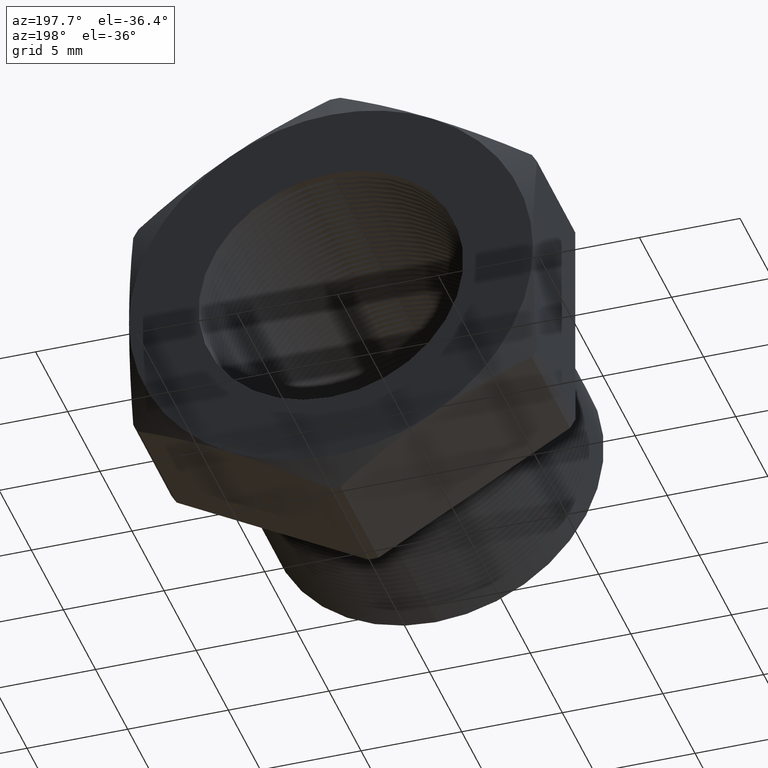
[diagram: clean part render]
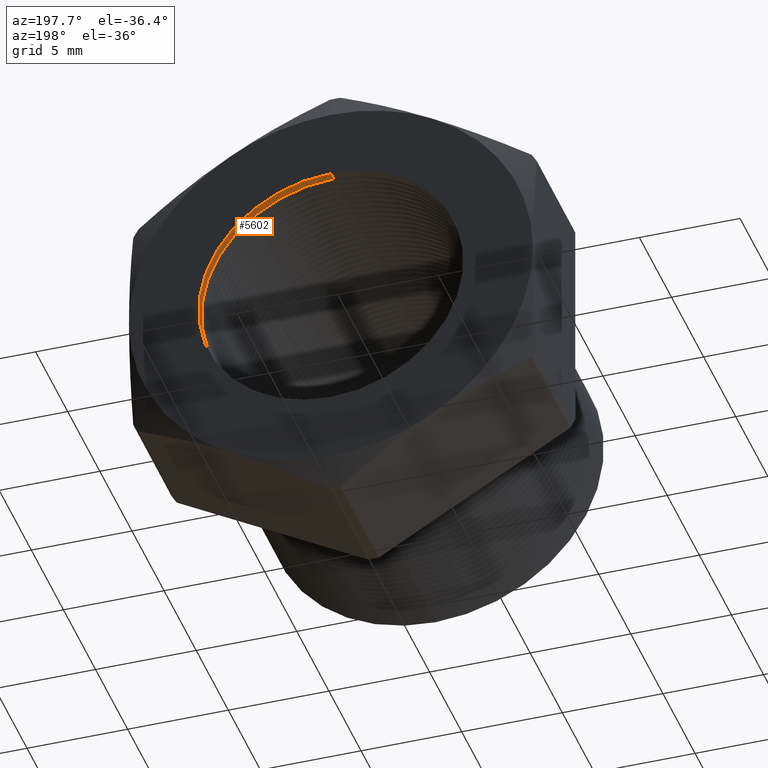
[diagram: same view with one face highlighted and labeled with its STEP entity id]
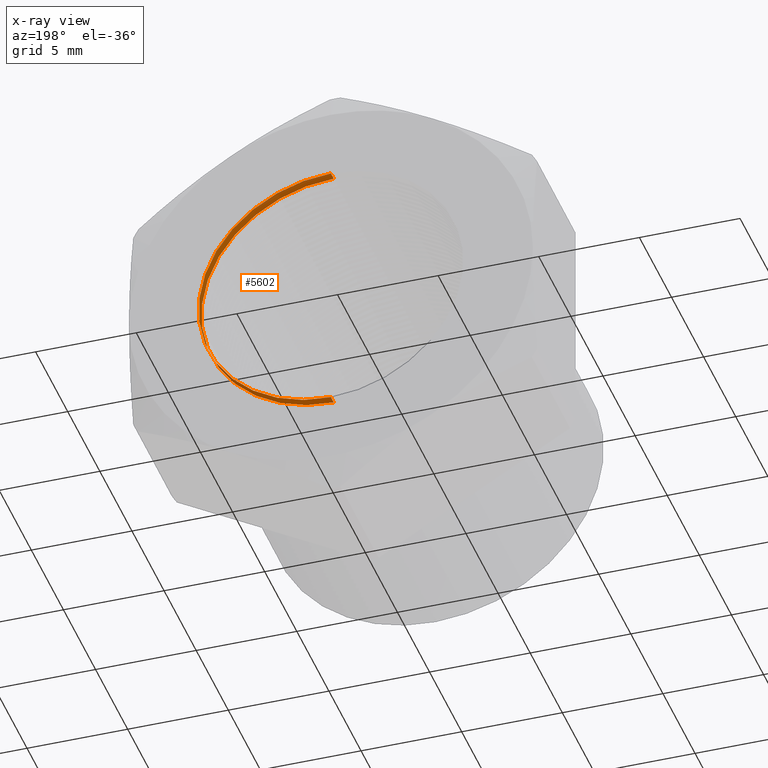
[diagram: x-ray of the same camera — body ghosted, the highlighted face saturated]
A machine part, auxiliary view. The second image highlights one B-rep face of the part: STEP entity #5602.
The next image is the same camera in x-ray: the body ghosted, the highlighted face saturated — about 0% of this face is hidden behind the body in this view.
In plain terms, the highlighted cylindrical surface (partial cylindrical patch) has radius 6.5783 mm, axis along (-0, -1, -0).
Its self-contained STEP definition (entity closure, byte-faithful):
#393 = VERTEX_POINT ( 'NONE', #7315 ) ;
#448 = VERTEX_POINT ( 'NONE', #7460 ) ;
#452 = VERTEX_POINT ( 'NONE', #7453 ) ;
#467 = EDGE_CURVE ( 'NONE', #448, #393, #7484, .T. ) ;
#468 = VERTEX_POINT ( 'NONE', #7480 ) ;
#474 = EDGE_CURVE ( 'NONE', #468, #452, #7475, .T. ) ;
#1187 = DIRECTION ( 'NONE',  ( 0.0000000000000000000, 0.0000000000000000000, -1.000000000000000000 ) ) ;
#1188 = DIRECTION ( 'NONE',  ( -0.0000000000000000000, -1.000000000000000000, -0.0000000000000000000 ) ) ;
#1189 = CARTESIAN_POINT ( 'NONE',  ( 0.0000000000000000000, 0.0000000000000000000, 0.0000000000000000000 ) ) ;
#1191 = AXIS2_PLACEMENT_3D ( 'NONE', #1189, #1188, #1187 ) ;
#1192 = CYLINDRICAL_SURFACE ( 'NONE', #1191, 0.2589880461203001900 ) ;
#1193 = FACE_OUTER_BOUND ( 'NONE', #5593, .T. ) ;
#1232 = DIRECTION ( 'NONE',  ( 0.0000000000000000000, 0.0000000000000000000, -1.000000000000000000 ) ) ;
#1233 = DIRECTION ( 'NONE',  ( -0.0000000000000000000, 1.000000000000000000, -0.0000000000000000000 ) ) ;
#1234 = CARTESIAN_POINT ( 'NONE',  ( 0.0000000000000000000, 0.3903219653570460000, 0.0000000000000000000 ) ) ;
#1235 = AXIS2_PLACEMENT_3D ( 'NONE', #1234, #1233, #1232 ) ;
#1240 = CIRCLE ( 'NONE', #1235, 0.2589880461203001900 ) ;
#3819 = EDGE_CURVE ( 'NONE', #448, #468, #7961, .T. ) ;
#5589 = ORIENTED_EDGE ( 'NONE', *, *, #474, .F. ) ;
#5592 = ORIENTED_EDGE ( 'NONE', *, *, #5615, .F. ) ;
#5593 = EDGE_LOOP ( 'NONE', ( #5589, #5594, #5596, #5592 ) ) ;
#5594 = ORIENTED_EDGE ( 'NONE', *, *, #3819, .F. ) ;
#5596 = ORIENTED_EDGE ( 'NONE', *, *, #467, .T. ) ;
#5602 = ADVANCED_FACE ( 'NONE', ( #1193 ), #1192, .F. ) ;
#5615 = EDGE_CURVE ( 'NONE', #452, #393, #1240, .T. ) ;
#7315 = CARTESIAN_POINT ( 'NONE',  ( 0.0000000000000000000, 0.3903219653570460000, -0.2589880461203001900 ) ) ;
#7453 = CARTESIAN_POINT ( 'NONE',  ( 3.171688816986526800E-017, 0.3903219653570460000, 0.2589880461203001900 ) ) ;
#7460 = CARTESIAN_POINT ( 'NONE',  ( 0.0000000000000000000, 0.4075548905829479200, -0.2589880461203001900 ) ) ;
#7472 = DIRECTION ( 'NONE',  ( -0.0000000000000000000, -1.000000000000000000, -0.0000000000000000000 ) ) ;
#7473 = VECTOR ( 'NONE', #7472, 39.37007874015748100 ) ;
#7474 = CARTESIAN_POINT ( 'NONE',  ( 3.171688816986526800E-017, 0.0000000000000000000, 0.2589880461203001900 ) ) ;
#7475 = LINE ( 'NONE', #7474, #7473 ) ;
#7480 = CARTESIAN_POINT ( 'NONE',  ( 3.171688816986526800E-017, 0.4075548905829479200, 0.2589880461203001900 ) ) ;
#7481 = DIRECTION ( 'NONE',  ( -0.0000000000000000000, -1.000000000000000000, -0.0000000000000000000 ) ) ;
#7482 = VECTOR ( 'NONE', #7481, 39.37007874015748100 ) ;
#7483 = CARTESIAN_POINT ( 'NONE',  ( 0.0000000000000000000, 0.0000000000000000000, -0.2589880461203001900 ) ) ;
#7484 = LINE ( 'NONE', #7483, #7482 ) ;
#7953 = DIRECTION ( 'NONE',  ( 0.0000000000000000000, 0.0000000000000000000, -1.000000000000000000 ) ) ;
#7954 = DIRECTION ( 'NONE',  ( -0.0000000000000000000, -1.000000000000000000, -0.0000000000000000000 ) ) ;
#7955 = CARTESIAN_POINT ( 'NONE',  ( 0.0000000000000000000, 0.4075548905829479200, 0.0000000000000000000 ) ) ;
#7956 = AXIS2_PLACEMENT_3D ( 'NONE', #7955, #7954, #7953 ) ;
#7961 = CIRCLE ( 'NONE', #7956, 0.2589880461203001900 ) ;